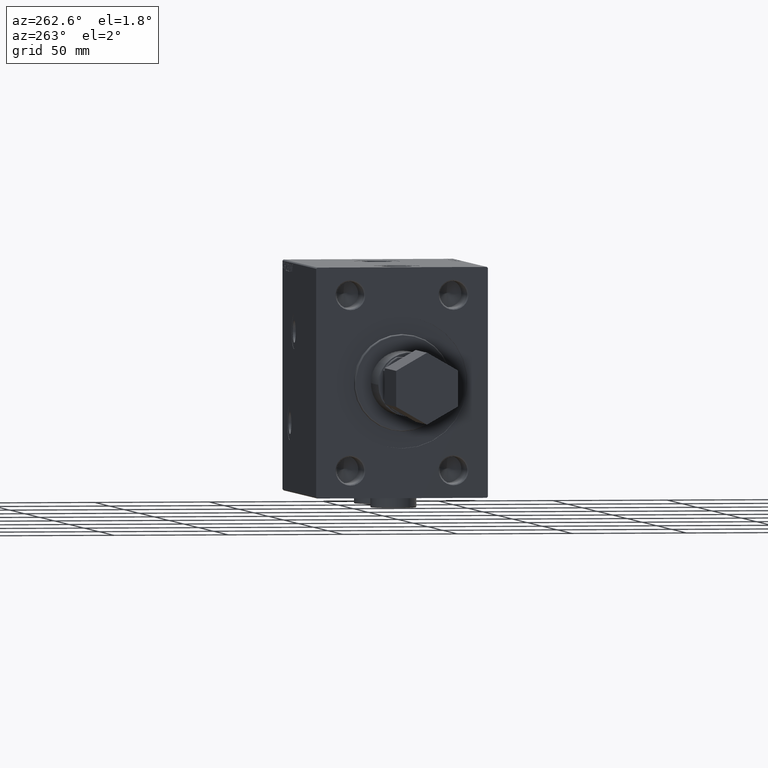
[diagram: clean part render]
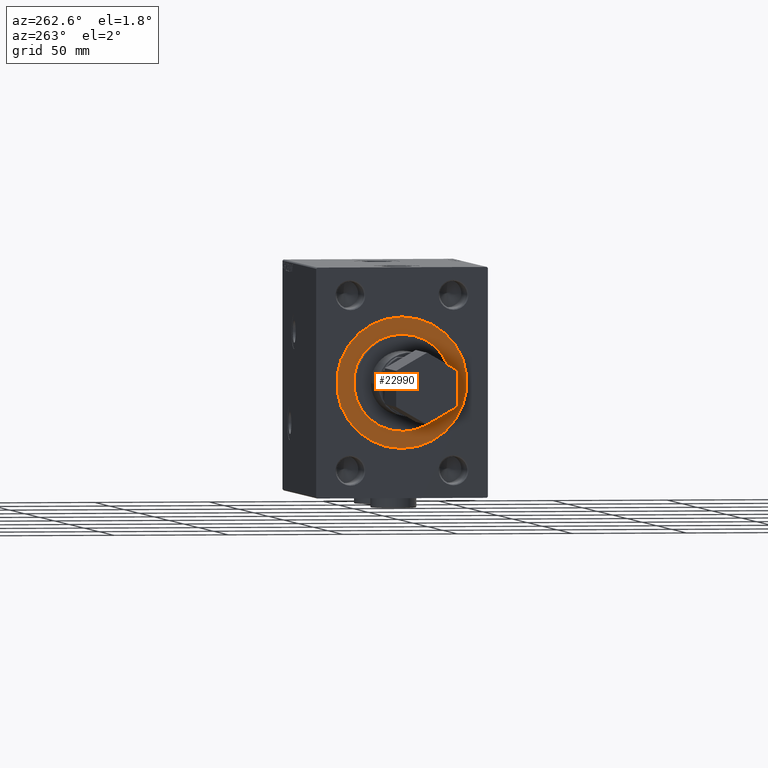
[diagram: same view with one face highlighted and labeled with its STEP entity id]
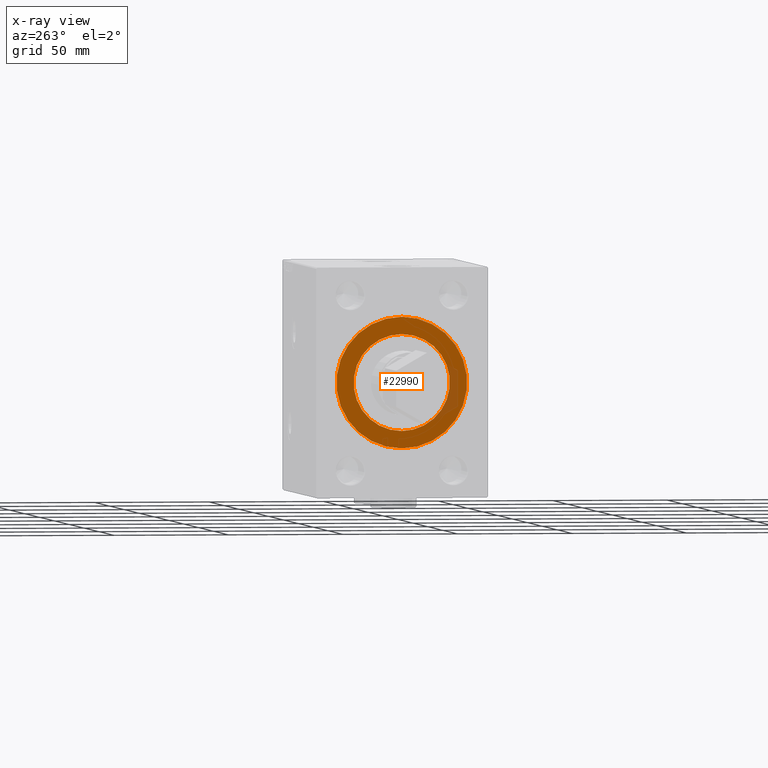
[diagram: x-ray of the same camera — body ghosted, the highlighted face saturated]
A machine part, auxiliary view. The second image highlights one B-rep face of the part: STEP entity #22990.
The next image is the same camera in x-ray: the body ghosted, the highlighted face saturated — about 8% of this face is hidden behind the body in this view.
In plain terms, the highlighted planar face has unit normal (-1, 0, 0).
Its self-contained STEP definition (entity closure, byte-faithful):
#1625 = ORIENTED_EDGE ( 'NONE', *, *, #24836, .T. ) ;
#3320 = EDGE_CURVE ( 'NONE', #3685, #9556, #6063, .T. ) ;
#3685 = VERTEX_POINT ( 'NONE', #28626 ) ;
#3904 = DIRECTION ( 'NONE',  ( 0.000000000000000000, 0.000000000000000000, -1.000000000000000000 ) ) ;
#4042 = EDGE_CURVE ( 'NONE', #5341, #4719, #21803, .T. ) ;
#4719 = VERTEX_POINT ( 'NONE', #22681 ) ;
#5341 = VERTEX_POINT ( 'NONE', #21859 ) ;
#5897 = CARTESIAN_POINT ( 'NONE',  ( 112.2000000000000028, 0.000000000000000000, 0.000000000000000000 ) ) ;
#6063 = CIRCLE ( 'NONE', #42254, 21.00000000000000000 ) ;
#8804 = CARTESIAN_POINT ( 'NONE',  ( 112.2000000000000028, 0.000000000000000000, 0.000000000000000000 ) ) ;
#9064 = ORIENTED_EDGE ( 'NONE', *, *, #3320, .F. ) ;
#9281 = CARTESIAN_POINT ( 'NONE',  ( 112.2000000000000028, 0.000000000000000000, 0.000000000000000000 ) ) ;
#9556 = VERTEX_POINT ( 'NONE', #28086 ) ;
#10178 = DIRECTION ( 'NONE',  ( 1.000000000000000000, 0.000000000000000000, 0.000000000000000000 ) ) ;
#10430 = FACE_BOUND ( 'NONE', #44672, .T. ) ;
#13946 = AXIS2_PLACEMENT_3D ( 'NONE', #5897, #39173, #20460 ) ;
#17821 = PLANE ( 'NONE',  #36903 ) ;
#18927 = DIRECTION ( 'NONE',  ( 0.000000000000000000, 0.000000000000000000, -1.000000000000000000 ) ) ;
#19188 = CARTESIAN_POINT ( 'NONE',  ( 112.2000000000000028, 0.000000000000000000, 0.000000000000000000 ) ) ;
#20460 = DIRECTION ( 'NONE',  ( 0.000000000000000000, 0.000000000000000000, -1.000000000000000000 ) ) ;
#21248 = CIRCLE ( 'NONE', #43254, 28.50000000000000000 ) ;
#21803 = CIRCLE ( 'NONE', #13946, 28.50000000000000000 ) ;
#21859 = CARTESIAN_POINT ( 'NONE',  ( 112.2000000000000028, 3.490243377569956456E-15, 28.50000000000000000 ) ) ;
#22681 = CARTESIAN_POINT ( 'NONE',  ( 112.2000000000000028, 0.000000000000000000, -28.50000000000000000 ) ) ;
#22990 = ADVANCED_FACE ( 'NONE', ( #10430, #43943 ), #17821, .T. ) ;
#23831 = DIRECTION ( 'NONE',  ( 1.000000000000000000, 0.000000000000000000, 0.000000000000000000 ) ) ;
#24836 = EDGE_CURVE ( 'NONE', #4719, #5341, #21248, .T. ) ;
#28086 = CARTESIAN_POINT ( 'NONE',  ( 112.2000000000000028, 2.571758278209441661E-15, -21.00000000000000000 ) ) ;
#28253 = DIRECTION ( 'NONE',  ( 0.000000000000000000, 0.000000000000000000, -1.000000000000000000 ) ) ;
#28626 = CARTESIAN_POINT ( 'NONE',  ( 112.2000000000000028, 0.000000000000000000, 21.00000000000000000 ) ) ;
#28939 = EDGE_CURVE ( 'NONE', #9556, #3685, #34738, .T. ) ;
#33180 = ORIENTED_EDGE ( 'NONE', *, *, #4042, .T. ) ;
#34738 = CIRCLE ( 'NONE', #35549, 21.00000000000000000 ) ;
#35549 = AXIS2_PLACEMENT_3D ( 'NONE', #8804, #23831, #18927 ) ;
#36552 = CARTESIAN_POINT ( 'NONE',  ( 112.2000000000000028, 0.000000000000000000, 0.000000000000000000 ) ) ;
#36903 = AXIS2_PLACEMENT_3D ( 'NONE', #36552, #10178, #40244 ) ;
#39173 = DIRECTION ( 'NONE',  ( 1.000000000000000000, 0.000000000000000000, 0.000000000000000000 ) ) ;
#40244 = DIRECTION ( 'NONE',  ( 0.000000000000000000, 0.000000000000000000, -1.000000000000000000 ) ) ;
#41362 = DIRECTION ( 'NONE',  ( 1.000000000000000000, 0.000000000000000000, 0.000000000000000000 ) ) ;
#42073 = EDGE_LOOP ( 'NONE', ( #1625, #33180 ) ) ;
#42254 = AXIS2_PLACEMENT_3D ( 'NONE', #9281, #42558, #28253 ) ;
#42558 = DIRECTION ( 'NONE',  ( 1.000000000000000000, 0.000000000000000000, 0.000000000000000000 ) ) ;
#43254 = AXIS2_PLACEMENT_3D ( 'NONE', #19188, #41362, #3904 ) ;
#43943 = FACE_OUTER_BOUND ( 'NONE', #42073, .T. ) ;
#44225 = ORIENTED_EDGE ( 'NONE', *, *, #28939, .F. ) ;
#44672 = EDGE_LOOP ( 'NONE', ( #9064, #44225 ) ) ;